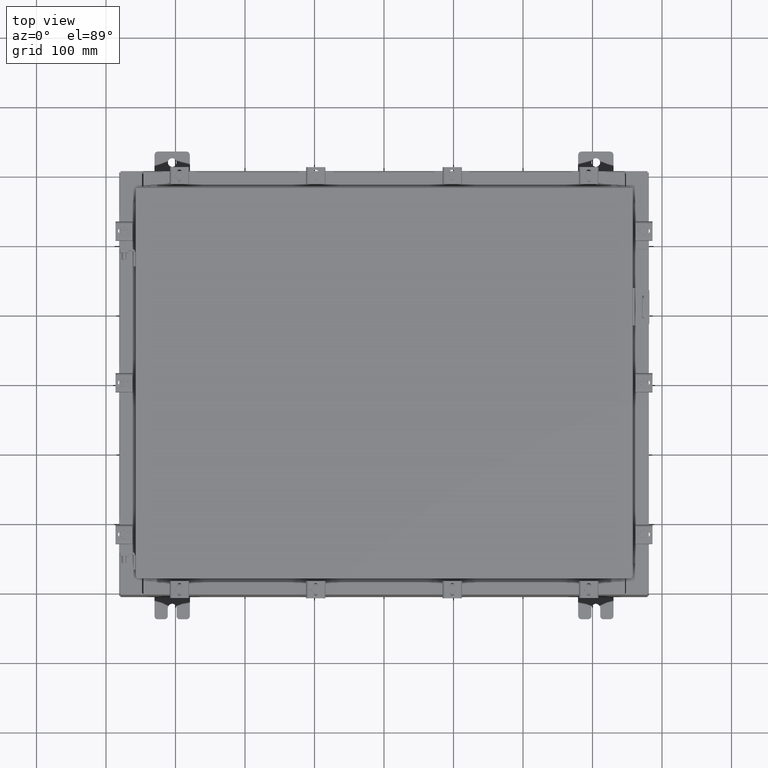
[diagram: clean part render]
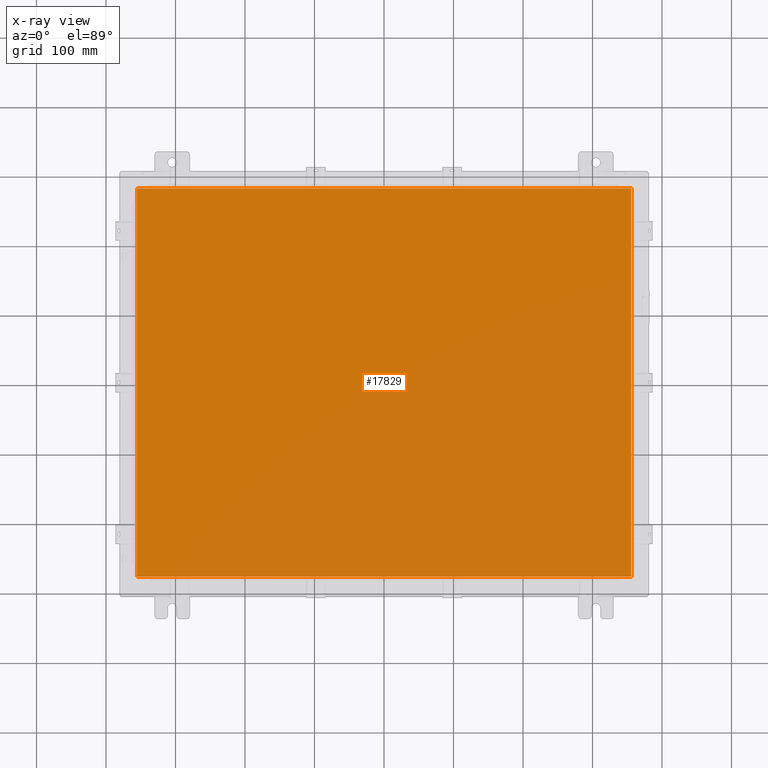
[diagram: x-ray — body ghosted, one internal face saturated and labeled with its STEP entity id]
A machine part, top view, then the same camera in x-ray: the body is ghosted and one INTERNAL B-rep face — a face not visible from any outside direction — is saturated and labeled: STEP entity #17829.
In plain terms, the highlighted planar face has unit normal (0, 0, -1).
Its self-contained STEP definition (entity closure, byte-faithful):
#320 = PLANE ( 'NONE',  #18669 ) ;
#1090 = ORIENTED_EDGE ( 'NONE', *, *, #1647, .F. ) ;
#1647 = EDGE_CURVE ( 'NONE', #11111, #5770, #17516, .T. ) ;
#2151 = ORIENTED_EDGE ( 'NONE', *, *, #9695, .F. ) ;
#4184 = EDGE_CURVE ( 'NONE', #7464, #19850, #7859, .T. ) ;
#4765 = CARTESIAN_POINT ( 'NONE',  ( -14.00629999999999600, -11.00630000000000000, -0.07470000000000015500 ) ) ;
#5112 = CARTESIAN_POINT ( 'NONE',  ( 14.00630000000000100, 11.00630000000000000, -0.07470000000000015500 ) ) ;
#5623 = DIRECTION ( 'NONE',  ( 0.0000000000000000000, 0.0000000000000000000, -1.000000000000000000 ) ) ;
#5770 = VERTEX_POINT ( 'NONE', #6214 ) ;
#6214 = CARTESIAN_POINT ( 'NONE',  ( 14.00630000000000100, -11.00630000000000000, -0.07470000000000015500 ) ) ;
#6259 = CARTESIAN_POINT ( 'NONE',  ( -14.00629999999999600, 11.00630000000000000, -0.07470000000000015500 ) ) ;
#6317 = CARTESIAN_POINT ( 'NONE',  ( 14.00630000000000100, -11.00630000000000000, -0.07470000000000015500 ) ) ;
#6332 = CARTESIAN_POINT ( 'NONE',  ( 14.00630000000000100, 11.00630000000000000, -0.07470000000000125200 ) ) ;
#6958 = ORIENTED_EDGE ( 'NONE', *, *, #4184, .F. ) ;
#7221 = EDGE_CURVE ( 'NONE', #5770, #7464, #16708, .T. ) ;
#7464 = VERTEX_POINT ( 'NONE', #5112 ) ;
#7859 = LINE ( 'NONE', #6332, #11935 ) ;
#9695 = EDGE_CURVE ( 'NONE', #19850, #11111, #16346, .T. ) ;
#10103 = VECTOR ( 'NONE', #13251, 39.37007874015748100 ) ;
#10407 = EDGE_LOOP ( 'NONE', ( #17484, #1090, #2151, #6958 ) ) ;
#11111 = VERTEX_POINT ( 'NONE', #13391 ) ;
#11935 = VECTOR ( 'NONE', #20293, 39.37007874015748100 ) ;
#13251 = DIRECTION ( 'NONE',  ( 0.0000000000000000000, -1.000000000000000000, 0.0000000000000000000 ) ) ;
#13391 = CARTESIAN_POINT ( 'NONE',  ( -14.00629999999999600, -11.00630000000000000, -0.07470000000000015500 ) ) ;
#13423 = DIRECTION ( 'NONE',  ( 1.000000000000000000, -0.0000000000000000000, -0.0000000000000000000 ) ) ;
#13911 = FACE_OUTER_BOUND ( 'NONE', #10407, .T. ) ;
#14959 = DIRECTION ( 'NONE',  ( 0.0000000000000000000, 1.000000000000000000, 0.0000000000000000000 ) ) ;
#16346 = LINE ( 'NONE', #6259, #10103 ) ;
#16378 = VECTOR ( 'NONE', #13423, 39.37007874015748100 ) ;
#16708 = LINE ( 'NONE', #6317, #20860 ) ;
#17484 = ORIENTED_EDGE ( 'NONE', *, *, #7221, .F. ) ;
#17516 = LINE ( 'NONE', #4765, #16378 ) ;
#17822 = DIRECTION ( 'NONE',  ( -1.000000000000000000, 0.0000000000000000000, -0.0000000000000000000 ) ) ;
#17829 = ADVANCED_FACE ( 'NONE', ( #13911 ), #320, .T. ) ;
#18669 = AXIS2_PLACEMENT_3D ( 'NONE', #21273, #5623, #17822 ) ;
#19850 = VERTEX_POINT ( 'NONE', #22276 ) ;
#20293 = DIRECTION ( 'NONE',  ( -1.000000000000000000, -0.0000000000000000000, -0.0000000000000000000 ) ) ;
#20860 = VECTOR ( 'NONE', #14959, 39.37007874015748100 ) ;
#21273 = CARTESIAN_POINT ( 'NONE',  ( 0.0000000000000000000, 0.0000000000000000000, -0.07470000000000015500 ) ) ;
#22276 = CARTESIAN_POINT ( 'NONE',  ( -14.00629999999999600, 11.00630000000000000, -0.07470000000000015500 ) ) ;